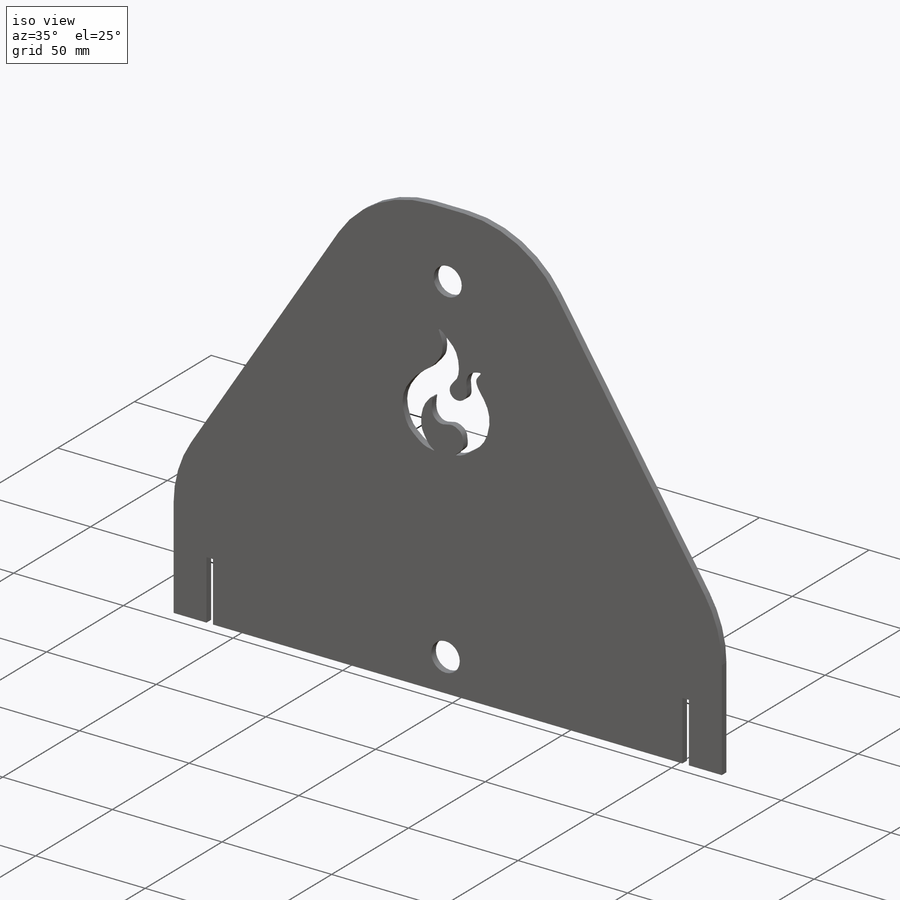
[diagram: iso view]
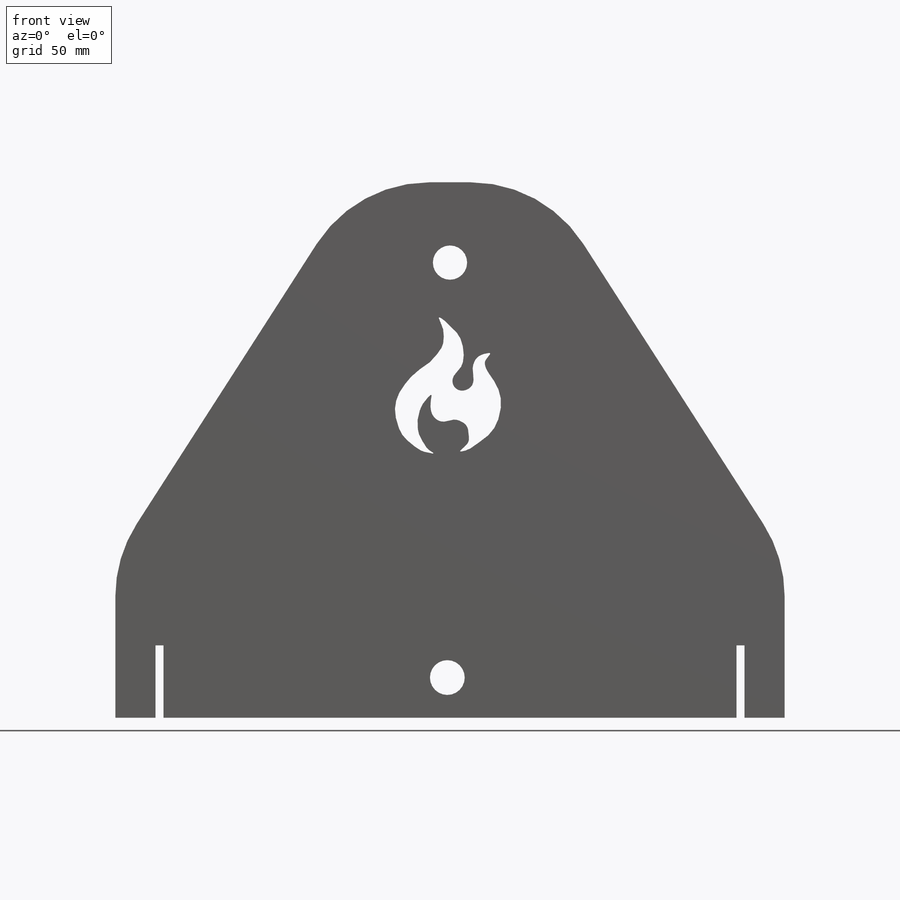
[diagram: front view]
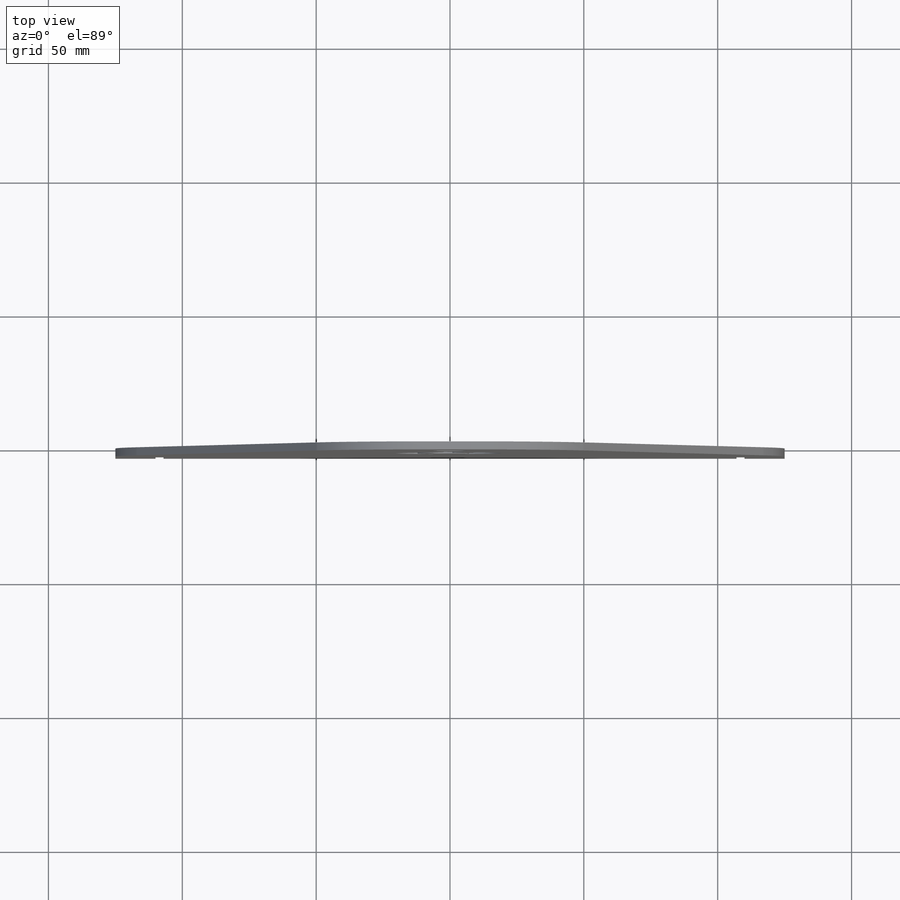
[diagram: top view]
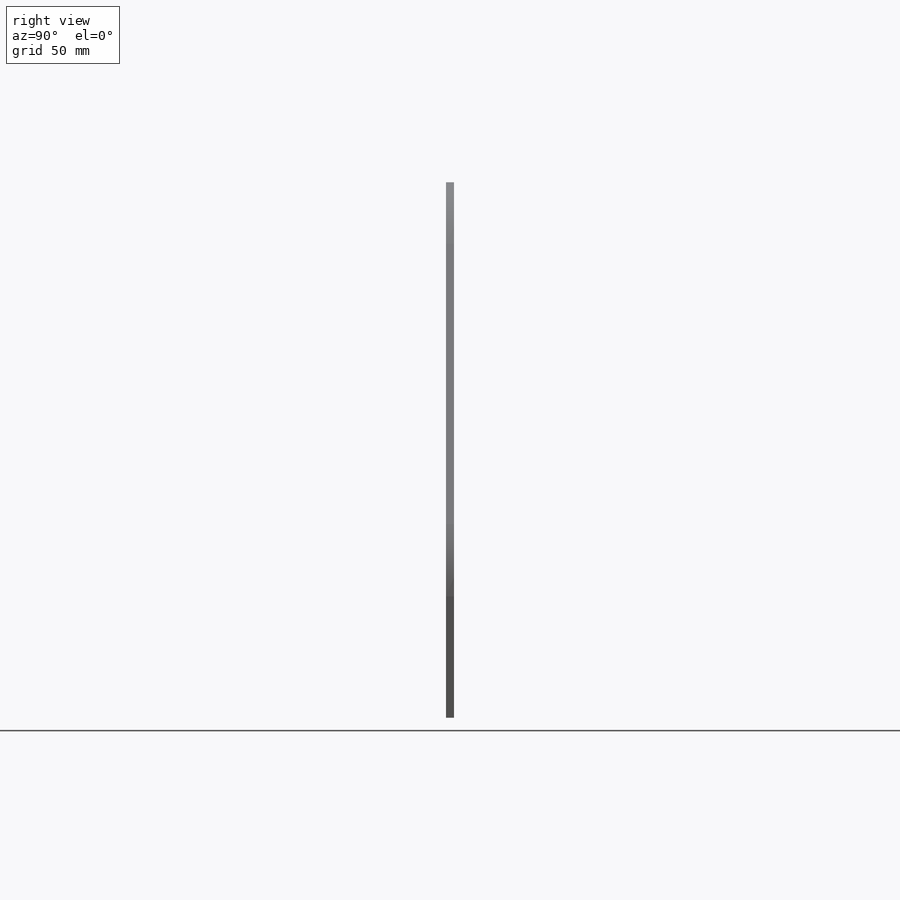
[diagram: right view]
SOLIDWORKS PART (.sldprt)
format: sldprt  version: not decoded by parser v0  size: 250,368 bytes
history: native  units: mm
features: sketch x4, plane x3, cut_extrude x3, material x1, extrude x1, fillet x1 (+8 scaffold rows collapsed)
feature tree (21):
  scaffold x8  (default folders/planes/origin — collapsed)
  material  "Material <sin especificar>"
  plane  "Alzado"
  plane  "Planta"
  plane  "Vista lateral"
  sketch  "Croquis1"  dims[D7=12.8mm D1=200.0mm D2=250.0mm D3=60.0mm D4=90.0mm D5=60.0mm D6=90.0mm D8=35.0mm D9=30.0mm]
  extrude  "Saliente-Extruir1"  Depth=3mm
  fillet  "Redondeo1"  Radius=50mm
  sketch  "Croquis3"  dims[D1=27.0mm D2=3.0mm D3=15.0mm D4=27.0mm D5=3.0mm D6=15.0mm]
  cut_extrude  "Cortar-Extruir2"  [1 undecoded]
  sketch  "Croquis4"
  cut_extrude  "Cortar-Extruir3"  [1 undecoded]
  sketch  "Croquis5"  dims[D1=13.0mm D2=15.0mm D3=124.0mm]
  cut_extrude  "Cortar-Extruir4"  [1 undecoded]
decode coverage: 5 of 9 modeling features carry decoded parameters
note: 3 parameter values undecoded
summary: no parameter record found for 3 features
note: suppression state not decoded; provenance and decode notes live in map.json
